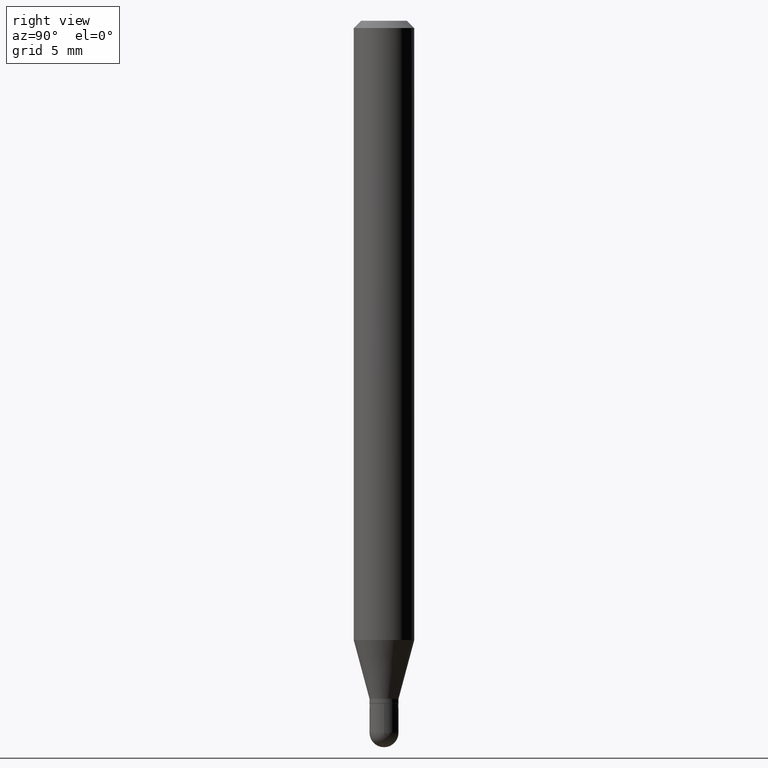
[diagram: clean part render]
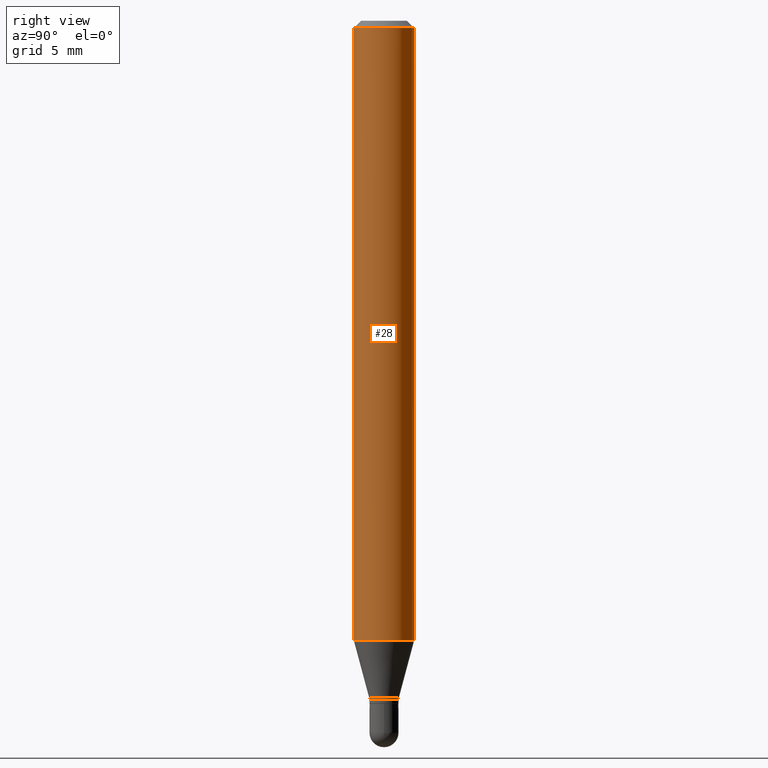
[diagram: same view with one face highlighted and labeled with its STEP entity id]
A machine part, right view. The second image highlights one B-rep face of the part: STEP entity #28.
In plain terms, the highlighted cylindrical surface (edge-blend (fillet) strip) has radius 1.5875 mm, axis along (-0, 0, 1).
Its self-contained STEP definition (entity closure, byte-faithful):
#23 = DIRECTION ( 'NONE',  ( -6.982962677686265922E-15, -1.000000000000000000, 4.370956789862821150E-15 ) ) ;
#28 = ADVANCED_FACE ( 'NONE', ( #512 ), #440, .T. ) ;
#44 = DIRECTION ( 'NONE',  ( -2.445462691550089435E-29, 3.491490095348556460E-15, 1.000000000000000000 ) ) ;
#47 = VECTOR ( 'NONE', #186, 39.37007874015748143 ) ;
#64 = VERTEX_POINT ( 'NONE', #242 ) ;
#67 = ORIENTED_EDGE ( 'NONE', *, *, #342, .F. ) ;
#74 = LINE ( 'NONE', #394, #223 ) ;
#78 = DIRECTION ( 'NONE',  ( -6.982962677686265922E-15, -1.000000000000000000, 3.491490095348556460E-15 ) ) ;
#82 = EDGE_CURVE ( 'NONE', #64, #235, #140, .T. ) ;
#91 = DIRECTION ( 'NONE',  ( -2.445462691550089435E-29, 3.491490095348556460E-15, 1.000000000000000000 ) ) ;
#128 = CIRCLE ( 'NONE', #296, 0.06250000000000000000 ) ;
#130 = DIRECTION ( 'NONE',  ( -2.445462691550089435E-29, 3.491490095348556460E-15, 1.000000000000000000 ) ) ;
#139 = VERTEX_POINT ( 'NONE', #243 ) ;
#140 = CIRCLE ( 'NONE', #362, 0.06250000000000000000 ) ;
#157 = EDGE_CURVE ( 'NONE', #139, #237, #128, .T. ) ;
#158 = AXIS2_PLACEMENT_3D ( 'NONE', #510, #91, #78 ) ;
#186 = DIRECTION ( 'NONE',  ( -2.445462691550089435E-29, 3.491490095348556460E-15, 1.000000000000000000 ) ) ;
#190 = ORIENTED_EDGE ( 'NONE', *, *, #396, .T. ) ;
#221 = CARTESIAN_POINT ( 'NONE',  ( 4.440892098500936776E-16, 0.06249999999999551747, -1.278708348754013402 ) ) ;
#223 = VECTOR ( 'NONE', #312, 39.37007874015748143 ) ;
#225 = EDGE_LOOP ( 'NONE', ( #432, #190, #468, #67 ) ) ;
#235 = VERTEX_POINT ( 'NONE', #265 ) ;
#237 = VERTEX_POINT ( 'NONE', #221 ) ;
#242 = CARTESIAN_POINT ( 'NONE',  ( -4.364351673553912750E-16, -0.06250000000000005551, -0.01499999999999979128 ) ) ;
#243 = CARTESIAN_POINT ( 'NONE',  ( -4.364351673553605094E-16, -0.06250000000000449640, -1.278708348754012736 ) ) ;
#250 = DIRECTION ( 'NONE',  ( -6.982962677686265922E-15, -1.000000000000000000, 3.483106191921935554E-15 ) ) ;
#265 = CARTESIAN_POINT ( 'NONE',  ( 4.440892098500940720E-16, 0.06249999999999995143, -0.01500000000000022669 ) ) ;
#296 = AXIS2_PLACEMENT_3D ( 'NONE', #484, #130, #23 ) ;
#307 = CARTESIAN_POINT ( 'NONE',  ( -4.364351673553916201E-16, -0.06250000000000000000, 2.182181309592847787E-16 ) ) ;
#312 = DIRECTION ( 'NONE',  ( -2.445462691550089435E-29, 3.491490095348556460E-15, 1.000000000000000000 ) ) ;
#342 = EDGE_CURVE ( 'NONE', #139, #64, #431, .T. ) ;
#362 = AXIS2_PLACEMENT_3D ( 'NONE', #481, #44, #250 ) ;
#394 = CARTESIAN_POINT ( 'NONE',  ( 4.440892098500625669E-16, 0.06250000000000000000, -2.182181309592847787E-16 ) ) ;
#396 = EDGE_CURVE ( 'NONE', #237, #235, #74, .T. ) ;
#431 = LINE ( 'NONE', #307, #47 ) ;
#432 = ORIENTED_EDGE ( 'NONE', *, *, #157, .T. ) ;
#440 = CYLINDRICAL_SURFACE ( 'NONE', #158, 0.06250000000000000000 ) ;
#468 = ORIENTED_EDGE ( 'NONE', *, *, #82, .F. ) ;
#481 = CARTESIAN_POINT ( 'NONE',  ( 3.668194037325136413E-31, -5.237235143022838535E-17, -0.01500000000000000812 ) ) ;
#484 = CARTESIAN_POINT ( 'NONE',  ( 3.127033560251559026E-29, -4.464597534514144179E-15, -1.278708348754013180 ) ) ;
#510 = CARTESIAN_POINT ( 'NONE',  ( 0.000000000000000000, 0.000000000000000000, 0.000000000000000000 ) ) ;
#512 = FACE_OUTER_BOUND ( 'NONE', #225, .T. ) ;